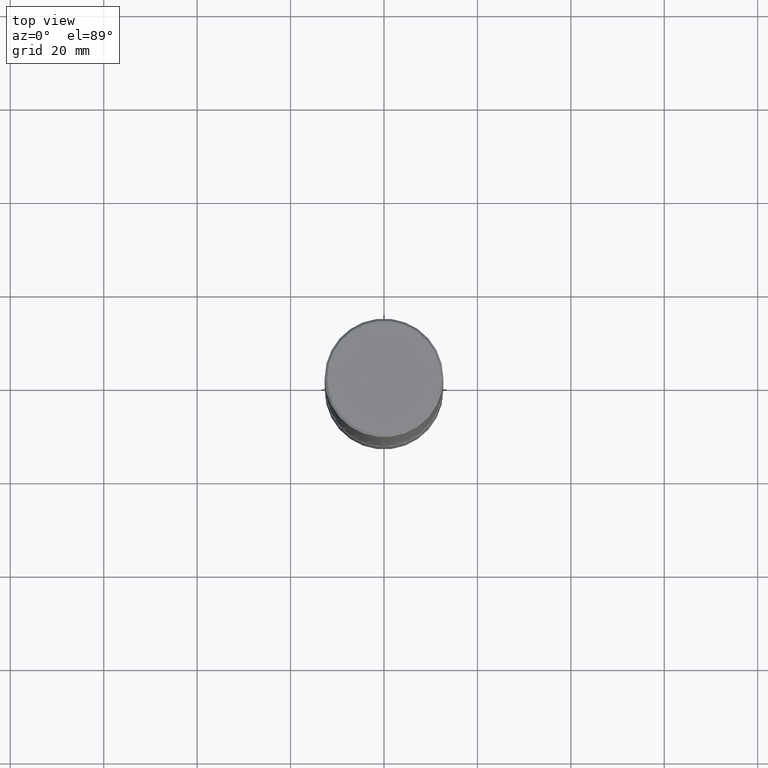
[diagram: clean part render]
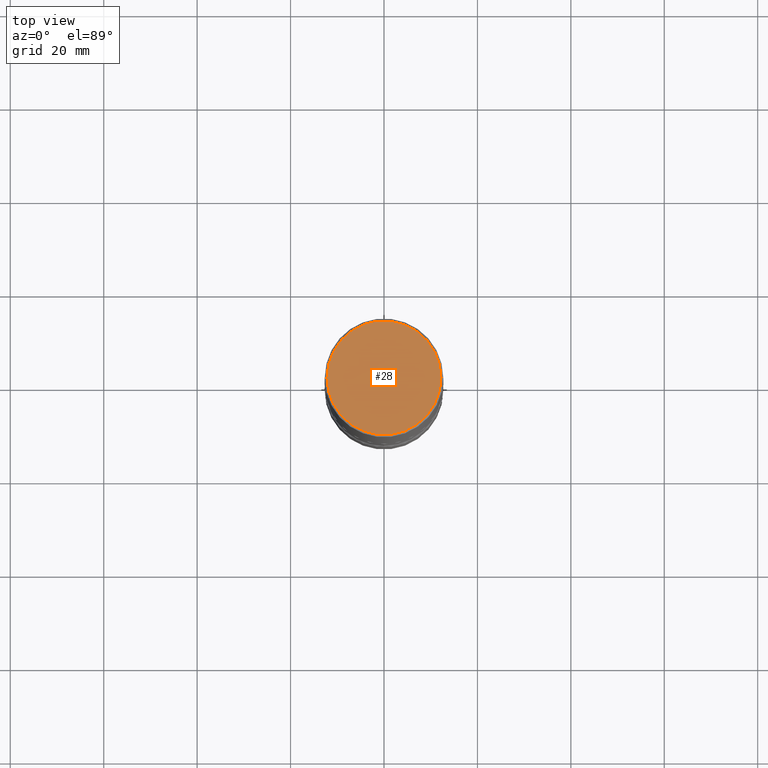
[diagram: same view with one face highlighted and labeled with its STEP entity id]
A machine part, top view. The second image highlights one B-rep face of the part: STEP entity #28.
In plain terms, the highlighted planar face has unit normal (0, -0, -1).
Its self-contained STEP definition (entity closure, byte-faithful):
#11 = DIRECTION ( 'NONE',  ( 1.000000000000000000, -6.982962677686266711E-15, 4.876036955247123238E-29 ) ) ;
#28 = ADVANCED_FACE ( 'NONE', ( #301 ), #482, .F. ) ;
#34 = CIRCLE ( 'NONE', #189, 0.4800000000000005929 ) ;
#36 = EDGE_CURVE ( 'NONE', #287, #381, #34, .T. ) ;
#48 = AXIS2_PLACEMENT_3D ( 'NONE', #251, #246, #435 ) ;
#75 = EDGE_LOOP ( 'NONE', ( #512, #465 ) ) ;
#96 = CARTESIAN_POINT ( 'NONE',  ( -0.4800000000000005929, 3.386736898677843141E-15, 1.280553747027767124E-17 ) ) ;
#130 = EDGE_CURVE ( 'NONE', #381, #287, #424, .T. ) ;
#160 = AXIS2_PLACEMENT_3D ( 'NONE', #398, #523, #11 ) ;
#189 = AXIS2_PLACEMENT_3D ( 'NONE', #201, #556, #210 ) ;
#201 = CARTESIAN_POINT ( 'NONE',  ( -3.131554243005659264E-46, 4.471029511141341874E-32, 1.280553747030123384E-17 ) ) ;
#210 = DIRECTION ( 'NONE',  ( 1.000000000000000000, -6.982962677686266711E-15, 4.876036955247123238E-29 ) ) ;
#246 = DIRECTION ( 'NONE',  ( 2.438088387897960049E-29, -3.491481338843145188E-15, -1.000000000000000000 ) ) ;
#251 = CARTESIAN_POINT ( 'NONE',  ( 3.351822085289412281E-15, 0.4800000000000005929, -1.669508273909561417E-15 ) ) ;
#287 = VERTEX_POINT ( 'NONE', #467 ) ;
#301 = FACE_OUTER_BOUND ( 'NONE', #75, .T. ) ;
#381 = VERTEX_POINT ( 'NONE', #96 ) ;
#398 = CARTESIAN_POINT ( 'NONE',  ( -3.131554243005659264E-46, 4.471029511141341874E-32, 1.280553747030123384E-17 ) ) ;
#424 = CIRCLE ( 'NONE', #160, 0.4800000000000005929 ) ;
#435 = DIRECTION ( 'NONE',  ( -1.000000000000000000, 6.982962677686265922E-15, -4.876176775795935793E-29 ) ) ;
#465 = ORIENTED_EDGE ( 'NONE', *, *, #36, .T. ) ;
#467 = CARTESIAN_POINT ( 'NONE',  ( 0.4800000000000005929, -3.396558832296486043E-15, 1.280553747032483033E-17 ) ) ;
#482 = PLANE ( 'NONE',  #48 ) ;
#512 = ORIENTED_EDGE ( 'NONE', *, *, #130, .T. ) ;
#523 = DIRECTION ( 'NONE',  ( -2.445468806185136597E-29, 3.491481338843145583E-15, 1.000000000000000000 ) ) ;
#556 = DIRECTION ( 'NONE',  ( -2.445468806185136597E-29, 3.491481338843145583E-15, 1.000000000000000000 ) ) ;